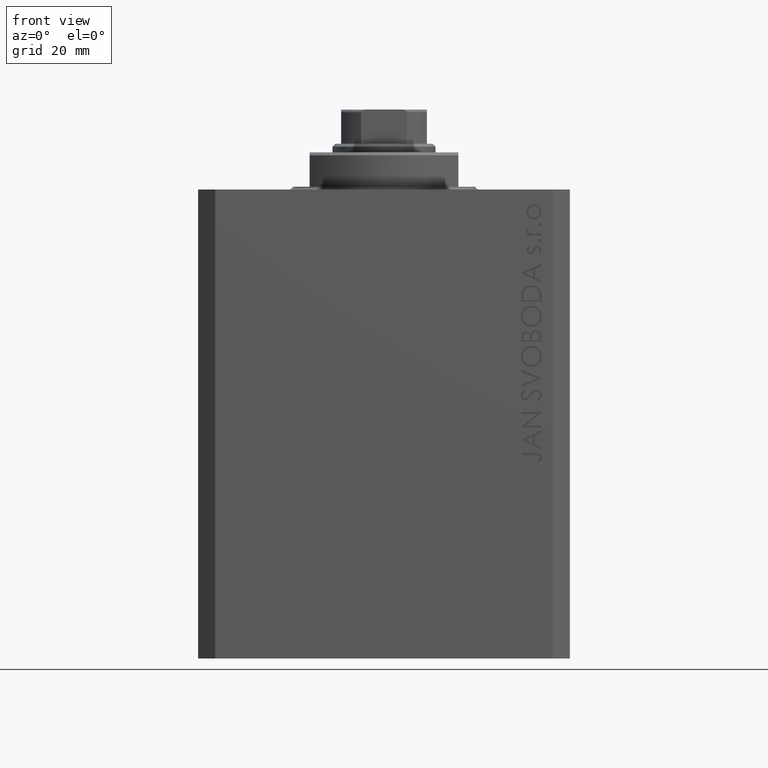
[diagram: clean part render]
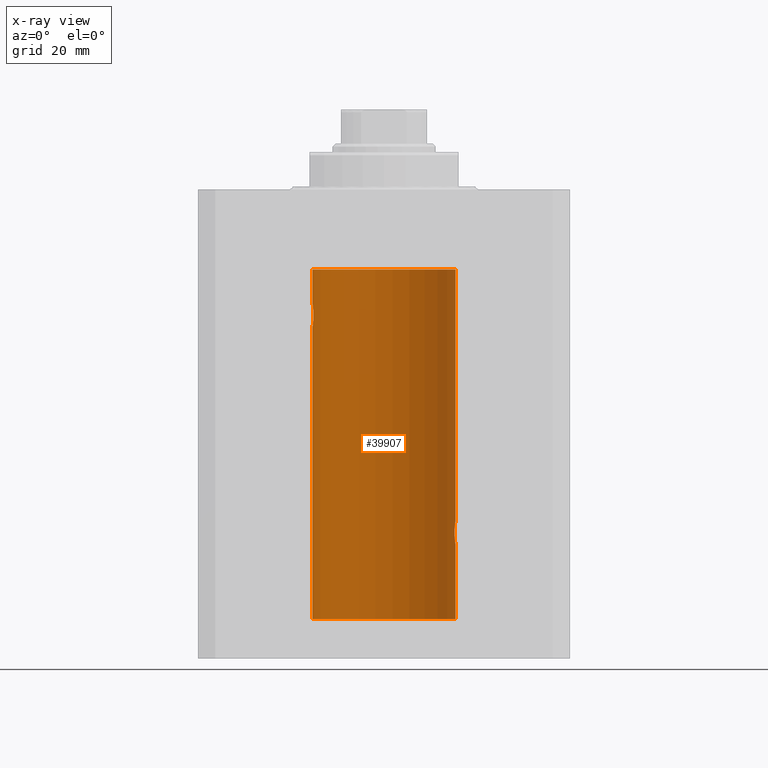
[diagram: x-ray — body ghosted, one internal face saturated and labeled with its STEP entity id]
A machine part, front view, then the same camera in x-ray: the body is ghosted and one INTERNAL B-rep face — a face not visible from any outside direction — is saturated and labeled: STEP entity #39907.
In plain terms, the highlighted cylindrical surface (partial cylindrical patch) has radius 12.5 mm, axis along (0, 0, 1).
Its self-contained STEP definition (entity closure, byte-faithful):
#51 = EDGE_LOOP ( 'NONE', ( #23254, #27620, #12943, #35023, #747, #21194, #25975, #40319, #12657 ) ) ;
#448 = EDGE_CURVE ( 'NONE', #46968, #7916, #32611, .T. ) ;
#721 = DIRECTION ( 'NONE',  ( 0.000000000000000000, 0.000000000000000000, 1.000000000000000000 ) ) ;
#747 = ORIENTED_EDGE ( 'NONE', *, *, #448, .T. ) ;
#1016 = B_SPLINE_CURVE_WITH_KNOTS ( 'NONE', 3,
 ( #22857, #37395, #19280, #30707, #45280, #30959, #38341, #27377, #27600, #38109, #24269, #5672, #23341, #26902, #8781, #19755, #41460, #1613, #34529, #12609, #20233, #2317, #20700, #20469, #45748, #16178, #5211, #35233, #31410, #27146 ),
 .UNSPECIFIED., .F., .F.,
 ( 4, 2, 2, 2, 2, 2, 2, 2, 2, 2, 2, 2, 2, 2, 4 ),
 ( 1.814683826656258666E-20, 0.0003914362731607577369, 0.0007828725463215154739, 0.001174308819482273265, 0.001565745092643030948, 0.002348617638964546530, 0.003131490185286061895, 0.003522926458446825216, 0.003914362731607588103, 0.004305799004768351423, 0.004697235277929114744, 0.005088671551089878065, 0.005480107824250641385, 0.005871544097411404706, 0.006262980370572168026 ),
 .UNSPECIFIED. ) ;
#1360 = CARTESIAN_POINT ( 'NONE',  ( 12.33896267925302581, 2.000000000000254463, -60.00000000000000711 ) ) ;
#1613 = CARTESIAN_POINT ( 'NONE',  ( -12.37018026341338839, 1.797558627508998086, -22.88656313533016373 ) ) ;
#2086 = EDGE_CURVE ( 'NONE', #46178, #34747, #12317, .T. ) ;
#2317 = CARTESIAN_POINT ( 'NONE',  ( -12.43034574091277911, 1.321095788880539024, -23.50733550364322255 ) ) ;
#3493 = CARTESIAN_POINT ( 'NONE',  ( 0.000000000000000000, 0.000000000000000000, -75.09999999999999432 ) ) ;
#3531 = VERTEX_POINT ( 'NONE', #18681 ) ;
#3578 = CARTESIAN_POINT ( 'NONE',  ( 12.50000000000000000, -3.070791583031755813E-15, -62.00000000000000711 ) ) ;
#4251 = DIRECTION ( 'NONE',  ( 1.000000000000000000, 0.000000000000000000, 0.000000000000000000 ) ) ;
#4425 = LINE ( 'NONE', #7534, #5744 ) ;
#4684 = DIRECTION ( 'NONE',  ( -0.000000000000000000, -0.000000000000000000, 1.000000000000000000 ) ) ;
#5037 = CARTESIAN_POINT ( 'NONE',  ( 0.000000000000000000, 0.000000000000000000, -13.99999999999999822 ) ) ;
#5211 = CARTESIAN_POINT ( 'NONE',  ( -12.48983485452574982, 0.5201193324741355539, -23.93561774521849372 ) ) ;
#5504 = CARTESIAN_POINT ( 'NONE',  ( 12.33896267925302581, 2.000000000000254463, -60.00000000000000711 ) ) ;
#5672 = CARTESIAN_POINT ( 'NONE',  ( -12.34781876294798053, 1.947190906025043633, -21.47436412829509678 ) ) ;
#5744 = VECTOR ( 'NONE', #14701, 1000.000000000000000 ) ;
#5907 = CARTESIAN_POINT ( 'NONE',  ( -12.50000000000000000, 1.867773856434666690E-17, -20.00000000000000000 ) ) ;
#6220 = LINE ( 'NONE', #43635, #36365 ) ;
#6971 = CIRCLE ( 'NONE', #42784, 12.50000000000000000 ) ;
#7534 = CARTESIAN_POINT ( 'NONE',  ( -12.50000000000000000, 1.530808498934191521E-15, -75.09999999999999432 ) ) ;
#7916 = VERTEX_POINT ( 'NONE', #27057 ) ;
#8486 = AXIS2_PLACEMENT_3D ( 'NONE', #5037, #721, #37452 ) ;
#8511 = CARTESIAN_POINT ( 'NONE',  ( 12.33896267925302581, 2.000000000000254907, -60.26143174220786847 ) ) ;
#8781 = CARTESIAN_POINT ( 'NONE',  ( -12.34109209020652465, 1.986986967296539897, -22.26269462454597914 ) ) ;
#11120 = DIRECTION ( 'NONE',  ( -0.000000000000000000, -0.000000000000000000, 1.000000000000000000 ) ) ;
#12317 = LINE ( 'NONE', #18783, #45057 ) ;
#12609 = CARTESIAN_POINT ( 'NONE',  ( -12.39864157855465088, 1.590288205413973532, -23.21980790594580313 ) ) ;
#12657 = ORIENTED_EDGE ( 'NONE', *, *, #46923, .T. ) ;
#12901 = CARTESIAN_POINT ( 'NONE',  ( 12.46910683544638232, 0.8866026273585057016, -58.20247863689695578 ) ) ;
#12943 = ORIENTED_EDGE ( 'NONE', *, *, #20941, .T. ) ;
#13371 = CARTESIAN_POINT ( 'NONE',  ( 12.37925647381943506, 1.734744884174225898, -58.99620732598650363 ) ) ;
#14701 = DIRECTION ( 'NONE',  ( -0.000000000000000000, -0.000000000000000000, 1.000000000000000000 ) ) ;
#15221 = CARTESIAN_POINT ( 'NONE',  ( 0.000000000000000000, 0.000000000000000000, -75.09999999999999432 ) ) ;
#15678 = CARTESIAN_POINT ( 'NONE',  ( 12.48390005916862933, 0.6457215011736597843, -61.89742771554266909 ) ) ;
#16154 = CARTESIAN_POINT ( 'NONE',  ( 12.50000000000000000, -3.070791583031755813E-15, -62.00000000000000711 ) ) ;
#16178 = CARTESIAN_POINT ( 'NONE',  ( -12.48394649977302073, 0.6448065707253024526, -23.89773031393659153 ) ) ;
#17265 = CARTESIAN_POINT ( 'NONE',  ( 12.50000000000000000, 0.000000000000000000, -75.09999999999999432 ) ) ;
#17870 = CARTESIAN_POINT ( 'NONE',  ( -12.50000000000000000, 1.530808426276628993E-15, -23.99999999999999645 ) ) ;
#18057 = CYLINDRICAL_SURFACE ( 'NONE', #46126, 12.50000000000000000 ) ;
#18681 = CARTESIAN_POINT ( 'NONE',  ( -12.50000000000000000, 1.530808498934191521E-15, -75.09999999999999432 ) ) ;
#18783 = CARTESIAN_POINT ( 'NONE',  ( -12.50000000000000000, 1.530808498934191521E-15, -75.09999999999999432 ) ) ;
#19149 = CIRCLE ( 'NONE', #8486, 12.50000000000000000 ) ;
#19280 = CARTESIAN_POINT ( 'NONE',  ( -12.49789934882883458, 0.2624928479599910047, -20.01301208516349917 ) ) ;
#19755 = CARTESIAN_POINT ( 'NONE',  ( -12.34922241902463114, 1.935814255713574239, -22.51937350851555308 ) ) ;
#20233 = CARTESIAN_POINT ( 'NONE',  ( -12.40913174964213184, 1.507394620545641439, -23.32102833500698225 ) ) ;
#20298 = CARTESIAN_POINT ( 'NONE',  ( 12.39867611624532806, 1.590019252152835794, -58.77984495929610631 ) ) ;
#20469 = CARTESIAN_POINT ( 'NONE',  ( -12.46009879577771606, 1.003863686549169465, -23.73470742397611843 ) ) ;
#20700 = CARTESIAN_POINT ( 'NONE',  ( -12.44076681548080288, 1.220297236145718944, -23.58991408680628155 ) ) ;
#20941 = EDGE_CURVE ( 'NONE', #37207, #24480, #24173, .T. ) ;
#21194 = ORIENTED_EDGE ( 'NONE', *, *, #24425, .T. ) ;
#22857 = CARTESIAN_POINT ( 'NONE',  ( -12.50000000000000000, 1.867773856434666690E-17, -20.00000000000000000 ) ) ;
#23254 = ORIENTED_EDGE ( 'NONE', *, *, #40002, .F. ) ;
#23263 = DIRECTION ( 'NONE',  ( 0.000000000000000000, 0.000000000000000000, 1.000000000000000000 ) ) ;
#23341 = CARTESIAN_POINT ( 'NONE',  ( -12.33897869807161385, 1.999901172190678089, -21.73788193668374547 ) ) ;
#23545 = CARTESIAN_POINT ( 'NONE',  ( 12.39869754437268767, 1.598954131913735033, -61.22932152813014284 ) ) ;
#23863 = CARTESIAN_POINT ( 'NONE',  ( 12.33896267925302226, 2.000000000000254463, -59.86934705949917657 ) ) ;
#23953 = B_SPLINE_CURVE_WITH_KNOTS ( 'NONE', 3,
 ( #16154, #26878, #34040, #27352, #15678, #30682, #30217, #44791, #26639, #23545, #45255, #41190, #8511, #1360 ),
 .UNSPECIFIED., .F., .F.,
 ( 4, 2, 2, 2, 2, 2, 4 ),
 ( 4.122900576430715099E-18, 0.0003915305205218091544, 0.0007830610410436140804, 0.001174591561565418952, 0.001566122082087223824, 0.002349183123130847879, 0.003132244164174471934 ),
 .UNSPECIFIED. ) ;
#24036 = CARTESIAN_POINT ( 'NONE',  ( 12.33896267925302581, 2.000000000000254463, -60.00000000000000711 ) ) ;
#24173 = LINE ( 'NONE', #17265, #28588 ) ;
#24269 = CARTESIAN_POINT ( 'NONE',  ( -12.37764291807175354, 1.747608771958140794, -20.99316879552500481 ) ) ;
#24425 = EDGE_CURVE ( 'NONE', #7916, #29670, #6220, .T. ) ;
#24480 = VERTEX_POINT ( 'NONE', #3578 ) ;
#24566 = CARTESIAN_POINT ( 'NONE',  ( 12.46011632531799407, 1.003644408234889429, -58.26516799687669135 ) ) ;
#25427 = FACE_OUTER_BOUND ( 'NONE', #51, .T. ) ;
#25975 = ORIENTED_EDGE ( 'NONE', *, *, #30404, .T. ) ;
#26639 = CARTESIAN_POINT ( 'NONE',  ( 12.43016561391612029, 1.322713721413891319, -61.50578877836698410 ) ) ;
#26878 = CARTESIAN_POINT ( 'NONE',  ( 12.50000000000000178, 0.1324055009716459952, -62.00000000000001421 ) ) ;
#26902 = CARTESIAN_POINT ( 'NONE',  ( -12.33895470450623044, 2.000049200055401766, -22.12992629360264729 ) ) ;
#27057 = CARTESIAN_POINT ( 'NONE',  ( 12.50000000000000000, -7.266276684081261841E-23, -58.00000000000000000 ) ) ;
#27146 = CARTESIAN_POINT ( 'NONE',  ( -12.50000000000000000, 1.530808426276628993E-15, -23.99999999999999645 ) ) ;
#27352 = CARTESIAN_POINT ( 'NONE',  ( 12.48989642018887203, 0.5185418732824298438, -61.93601292187605623 ) ) ;
#27377 = CARTESIAN_POINT ( 'NONE',  ( -12.44082361696003503, 1.219754986802281449, -20.40963319990594016 ) ) ;
#27437 = CARTESIAN_POINT ( 'NONE',  ( 12.48395395845270528, 0.6446573166014708534, -58.10222124213519379 ) ) ;
#27600 = CARTESIAN_POINT ( 'NONE',  ( -12.43019346654084956, 1.322451657002078340, -20.49398366327208620 ) ) ;
#27620 = ORIENTED_EDGE ( 'NONE', *, *, #29963, .F. ) ;
#27665 = CARTESIAN_POINT ( 'NONE',  ( 12.34110728646152211, 1.986893050944461780, -59.73661347764982565 ) ) ;
#27912 = CARTESIAN_POINT ( 'NONE',  ( 12.40916530024876963, 1.507117913375724649, -58.67865955049006743 ) ) ;
#28588 = VECTOR ( 'NONE', #32022, 1000.000000000000000 ) ;
#28860 = DIRECTION ( 'NONE',  ( -0.000000000000000000, -0.000000000000000000, 1.000000000000000000 ) ) ;
#29670 = VERTEX_POINT ( 'NONE', #35047 ) ;
#29911 = VERTEX_POINT ( 'NONE', #17870 ) ;
#29963 = EDGE_CURVE ( 'NONE', #37207, #3531, #6971, .T. ) ;
#30217 = CARTESIAN_POINT ( 'NONE',  ( 12.46019522898365395, 1.002712894177340885, -61.73540896027603253 ) ) ;
#30404 = EDGE_CURVE ( 'NONE', #29670, #34747, #19149, .T. ) ;
#30682 = CARTESIAN_POINT ( 'NONE',  ( 12.46901623405144299, 0.8878913781257963267, -61.79689651717551158 ) ) ;
#30707 = CARTESIAN_POINT ( 'NONE',  ( -12.48990118705761532, 0.5184196815546056047, -20.06395648222637007 ) ) ;
#30959 = CARTESIAN_POINT ( 'NONE',  ( -12.46903010196599304, 0.8876934327478135378, -20.20300788371381984 ) ) ;
#31410 = CARTESIAN_POINT ( 'NONE',  ( -12.50000000000000533, 0.1306394121199390135, -24.00000000000000711 ) ) ;
#31476 = CARTESIAN_POINT ( 'NONE',  ( 12.35520276972935250, 1.897773362058245761, -59.35528278634336630 ) ) ;
#32022 = DIRECTION ( 'NONE',  ( -0.000000000000000000, -0.000000000000000000, 1.000000000000000000 ) ) ;
#32611 = B_SPLINE_CURVE_WITH_KNOTS ( 'NONE', 3,
 ( #5504, #23863, #27665, #35063, #31476, #42690, #13371, #20298, #27912, #45586, #42467, #24566, #12901, #27437, #41989, #38650, #34833, #39109 ),
 .UNSPECIFIED., .F., .F.,
 ( 4, 2, 2, 2, 2, 2, 2, 2, 4 ),
 ( 0.003132244164174471934, 0.003523586189974247697, 0.003914928215774023459, 0.004306270241573798355, 0.004697612267373574985, 0.005088954293173349880, 0.005480296318973125642, 0.005871638344772901405, 0.006262980370572677168 ),
 .UNSPECIFIED. ) ;
#32881 = CARTESIAN_POINT ( 'NONE',  ( 12.50000000000000000, 0.000000000000000000, -75.09999999999999432 ) ) ;
#34040 = CARTESIAN_POINT ( 'NONE',  ( 12.49789833780794268, 0.2625555164371063399, -61.98698170822146380 ) ) ;
#34529 = CARTESIAN_POINT ( 'NONE',  ( -12.37922086519035325, 1.734998657226764829, -23.00335814299181436 ) ) ;
#34747 = VERTEX_POINT ( 'NONE', #44452 ) ;
#34833 = CARTESIAN_POINT ( 'NONE',  ( 12.50000000000000000, 0.1306079576516677443, -57.99999999999997868 ) ) ;
#35023 = ORIENTED_EDGE ( 'NONE', *, *, #35423, .T. ) ;
#35047 = CARTESIAN_POINT ( 'NONE',  ( 12.50000000000000000, 0.000000000000000000, -13.99999999999999822 ) ) ;
#35063 = CARTESIAN_POINT ( 'NONE',  ( 12.34924836377099844, 1.935649219704940194, -59.48002062127163470 ) ) ;
#35233 = CARTESIAN_POINT ( 'NONE',  ( -12.49788564268284041, 0.2633501011236127343, -23.98690384766255335 ) ) ;
#35423 = EDGE_CURVE ( 'NONE', #24480, #46968, #23953, .T. ) ;
#36365 = VECTOR ( 'NONE', #28860, 1000.000000000000000 ) ;
#36620 = DIRECTION ( 'NONE',  ( 1.000000000000000000, 0.000000000000000000, 0.000000000000000000 ) ) ;
#37207 = VERTEX_POINT ( 'NONE', #32881 ) ;
#37395 = CARTESIAN_POINT ( 'NONE',  ( -12.50000000000000000, 0.1323736289504353625, -20.00000000000000000 ) ) ;
#37452 = DIRECTION ( 'NONE',  ( 1.000000000000000000, 0.000000000000000000, 0.000000000000000000 ) ) ;
#38109 = CARTESIAN_POINT ( 'NONE',  ( -12.39873273758732175, 1.598680238462371062, -20.77033506126851137 ) ) ;
#38341 = CARTESIAN_POINT ( 'NONE',  ( -12.46021263690096958, 1.002494658017156981, -20.26446744561863156 ) ) ;
#38650 = CARTESIAN_POINT ( 'NONE',  ( 12.49788668346400122, 0.2632864803365719264, -58.01308975838333026 ) ) ;
#39109 = CARTESIAN_POINT ( 'NONE',  ( 12.50000000000000000, -7.266276684081261841E-23, -58.00000000000000000 ) ) ;
#39907 = ADVANCED_FACE ( 'NONE', ( #25427 ), #18057, .F. ) ;
#40002 = EDGE_CURVE ( 'NONE', #3531, #29911, #4425, .T. ) ;
#40319 = ORIENTED_EDGE ( 'NONE', *, *, #2086, .F. ) ;
#41190 = CARTESIAN_POINT ( 'NONE',  ( 12.34779119491631150, 1.947363444907014518, -60.52502775168253635 ) ) ;
#41460 = CARTESIAN_POINT ( 'NONE',  ( -12.35517291625592051, 1.897967064543089721, -22.64415233770293412 ) ) ;
#41989 = CARTESIAN_POINT ( 'NONE',  ( 12.48983962833819028, 0.5199974825204922713, -58.06435160808017315 ) ) ;
#42467 = CARTESIAN_POINT ( 'NONE',  ( 12.44079117518645461, 1.220047488436375227, -58.40989676335083658 ) ) ;
#42690 = CARTESIAN_POINT ( 'NONE',  ( 12.37021546997940113, 1.797317011867410219, -59.11295119741078707 ) ) ;
#42784 = AXIS2_PLACEMENT_3D ( 'NONE', #15221, #23263, #4251 ) ;
#43635 = CARTESIAN_POINT ( 'NONE',  ( 12.50000000000000000, 0.000000000000000000, -75.09999999999999432 ) ) ;
#44452 = CARTESIAN_POINT ( 'NONE',  ( -12.50000000000000000, 1.530808498934191521E-15, -13.99999999999999822 ) ) ;
#44791 = CARTESIAN_POINT ( 'NONE',  ( 12.44079900692650931, 1.220007525301745277, -61.59017579083666050 ) ) ;
#45057 = VECTOR ( 'NONE', #4684, 1000.000000000000000 ) ;
#45255 = CARTESIAN_POINT ( 'NONE',  ( 12.37760587642916477, 1.747868572747724114, -61.00639653169000809 ) ) ;
#45280 = CARTESIAN_POINT ( 'NONE',  ( -12.48390768591463207, 0.6455696738844916016, -20.10252270298193977 ) ) ;
#45586 = CARTESIAN_POINT ( 'NONE',  ( 12.43037348241797879, 1.320834183883846435, -58.49243837704293725 ) ) ;
#45748 = CARTESIAN_POINT ( 'NONE',  ( -12.46909283808506430, 0.8868029758979402155, -23.79742491916155345 ) ) ;
#46126 = AXIS2_PLACEMENT_3D ( 'NONE', #3493, #11120, #36620 ) ;
#46178 = VERTEX_POINT ( 'NONE', #5907 ) ;
#46923 = EDGE_CURVE ( 'NONE', #46178, #29911, #1016, .T. ) ;
#46968 = VERTEX_POINT ( 'NONE', #24036 ) ;